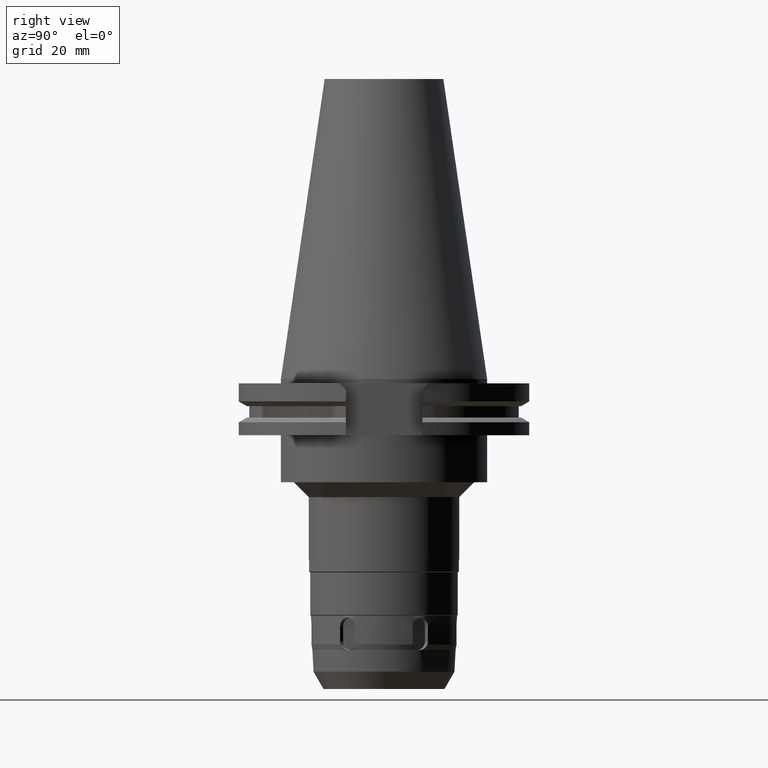
[diagram: clean part render]
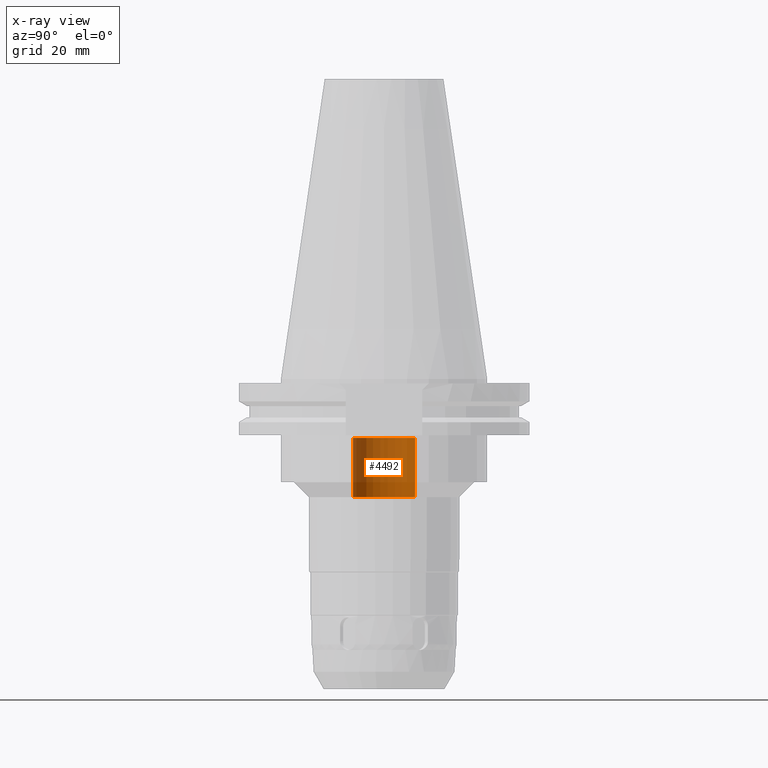
[diagram: x-ray — body ghosted, one internal face saturated and labeled with its STEP entity id]
A machine part, right view, then the same camera in x-ray: the body is ghosted and one INTERNAL B-rep face — a face not visible from any outside direction — is saturated and labeled: STEP entity #4492.
In plain terms, the highlighted cylindrical surface (edge-blend (fillet) strip) has radius 10.5 mm, axis along (0, 0, -1).
Its self-contained STEP definition (entity closure, byte-faithful):
#2214=CARTESIAN_POINT('',(0.E0,2.595393961433E-14,-4.E1));
#2215=DIRECTION('',(0.E0,0.E0,-1.E0));
#2216=DIRECTION('',(0.E0,-1.E0,0.E0));
#2217=AXIS2_PLACEMENT_3D('',#2214,#2215,#2216);
#2246=DIRECTION('',(0.E0,0.E0,1.E0));
#2247=VECTOR('',#2246,2.E1);
#2248=CARTESIAN_POINT('',(0.E0,-1.05E1,-4.E1));
#2249=LINE('',#2248,#2247);
#2253=DIRECTION('',(0.E0,0.E0,1.E0));
#2254=VECTOR('',#2253,2.E1);
#2255=CARTESIAN_POINT('',(0.E0,1.05E1,-4.E1));
#2256=LINE('',#2255,#2254);
#2268=CARTESIAN_POINT('',(0.E0,2.595393961433E-14,-2.E1));
#2269=DIRECTION('',(0.E0,0.E0,1.E0));
#2270=DIRECTION('',(0.E0,1.E0,0.E0));
#2271=AXIS2_PLACEMENT_3D('',#2268,#2269,#2270);
#2580=CARTESIAN_POINT('',(0.E0,-1.05E1,-2.E1));
#2581=CARTESIAN_POINT('',(0.E0,1.05E1,-2.E1));
#2582=VERTEX_POINT('',#2580);
#2583=VERTEX_POINT('',#2581);
#2584=CARTESIAN_POINT('',(0.E0,1.05E1,-4.E1));
#2585=VERTEX_POINT('',#2584);
#2586=CARTESIAN_POINT('',(0.E0,-1.05E1,-4.E1));
#2587=VERTEX_POINT('',#2586);
#4478=CARTESIAN_POINT('',(0.E0,2.595393961433E-14,1.1193E2));
#4479=DIRECTION('',(0.E0,0.E0,-1.E0));
#4480=DIRECTION('',(0.E0,-1.E0,0.E0));
#4481=AXIS2_PLACEMENT_3D('',#4478,#4479,#4480);
#4482=CYLINDRICAL_SURFACE('',#4481,1.05E1);
#4484=ORIENTED_EDGE('',*,*,#4483,.F.);
#4485=ORIENTED_EDGE('',*,*,#4467,.F.);
#4487=ORIENTED_EDGE('',*,*,#4486,.T.);
#4489=ORIENTED_EDGE('',*,*,#4488,.F.);
#4490=EDGE_LOOP('',(#4484,#4485,#4487,#4489));
#4491=FACE_OUTER_BOUND('',#4490,.F.);
#2218=CIRCLE('',#2217,1.05E1);
#2272=CIRCLE('',#2271,1.05E1);
#4467=EDGE_CURVE('',#2587,#2585,#2218,.T.);
#4483=EDGE_CURVE('',#2585,#2583,#2256,.T.);
#4486=EDGE_CURVE('',#2587,#2582,#2249,.T.);
#4488=EDGE_CURVE('',#2583,#2582,#2272,.T.);
#4492=ADVANCED_FACE('',(#4491),#4482,.F.);